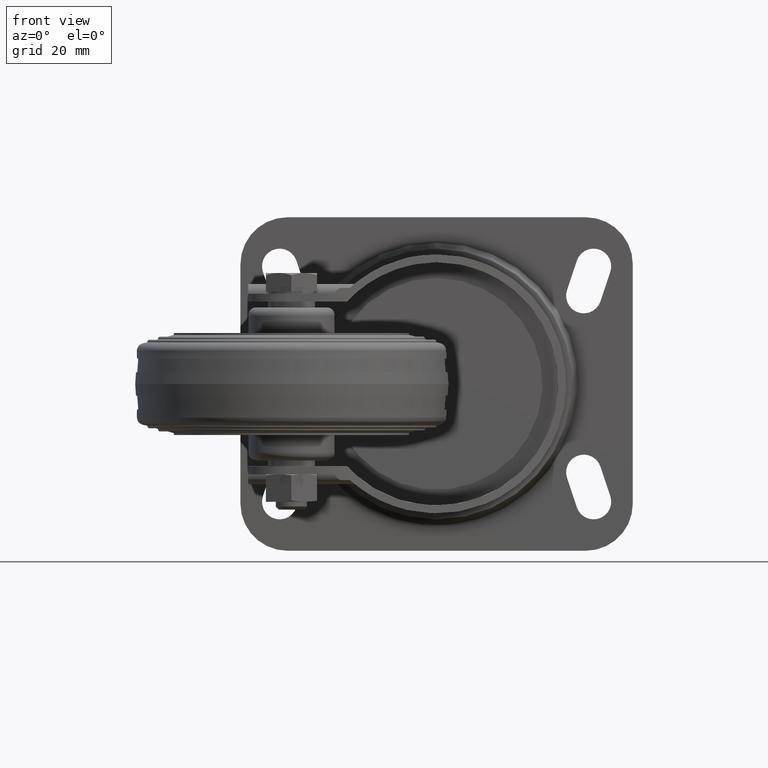
[diagram: clean part render]
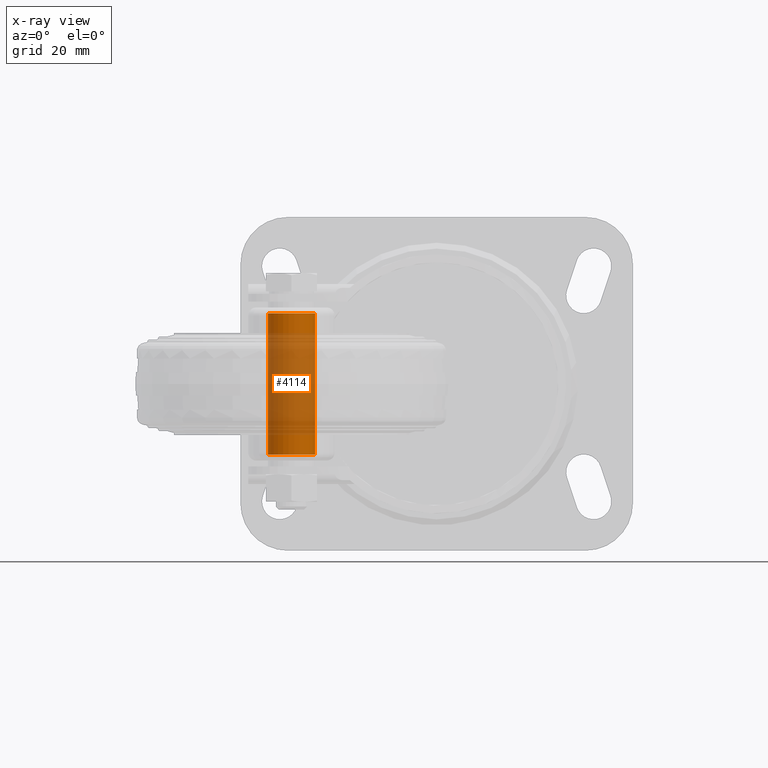
[diagram: x-ray — body ghosted, one internal face saturated and labeled with its STEP entity id]
A machine part, front view, then the same camera in x-ray: the body is ghosted and one INTERNAL B-rep face — a face not visible from any outside direction — is saturated and labeled: STEP entity #4114.
In plain terms, the highlighted cylindrical surface (bore or boss wall) has radius 6 mm, axis along (0, 0, -1).
Its self-contained STEP definition (entity closure, byte-faithful):
#134=CYLINDRICAL_SURFACE('',#4413,6.);
#228=FACE_BOUND('',#809,.T.);
#351=CIRCLE('',#4412,6.);
#352=CIRCLE('',#4414,6.);
#524=FACE_OUTER_BOUND('',#808,.T.);
#808=EDGE_LOOP('',(#2890));
#809=EDGE_LOOP('',(#2891));
#1890=VERTEX_POINT('',#6232);
#1891=VERTEX_POINT('',#6235);
#2303=EDGE_CURVE('',#1890,#1890,#351,.T.);
#2304=EDGE_CURVE('',#1891,#1891,#352,.T.);
#2890=ORIENTED_EDGE('',*,*,#2303,.T.);
#2891=ORIENTED_EDGE('',*,*,#2304,.F.);
#4114=ADVANCED_FACE('',(#524,#228),#134,.F.);
#4412=AXIS2_PLACEMENT_3D('',#6233,#4951,#4952);
#4413=AXIS2_PLACEMENT_3D('',#6234,#4953,#4954);
#4414=AXIS2_PLACEMENT_3D('',#6236,#4955,#4956);
#4951=DIRECTION('center_axis',(0.,0.,1.));
#4952=DIRECTION('ref_axis',(1.,0.,0.));
#4953=DIRECTION('center_axis',(0.,0.,-1.));
#4954=DIRECTION('ref_axis',(1.,0.,0.));
#4955=DIRECTION('center_axis',(0.,0.,1.));
#4956=DIRECTION('ref_axis',(1.,0.,0.));
#6232=CARTESIAN_POINT('',(6.,0.,18.));
#6233=CARTESIAN_POINT('Origin',(0.,0.,18.));
#6234=CARTESIAN_POINT('Origin',(0.,0.,0.));
#6235=CARTESIAN_POINT('',(6.,0.,-18.));
#6236=CARTESIAN_POINT('Origin',(0.,0.,-18.));